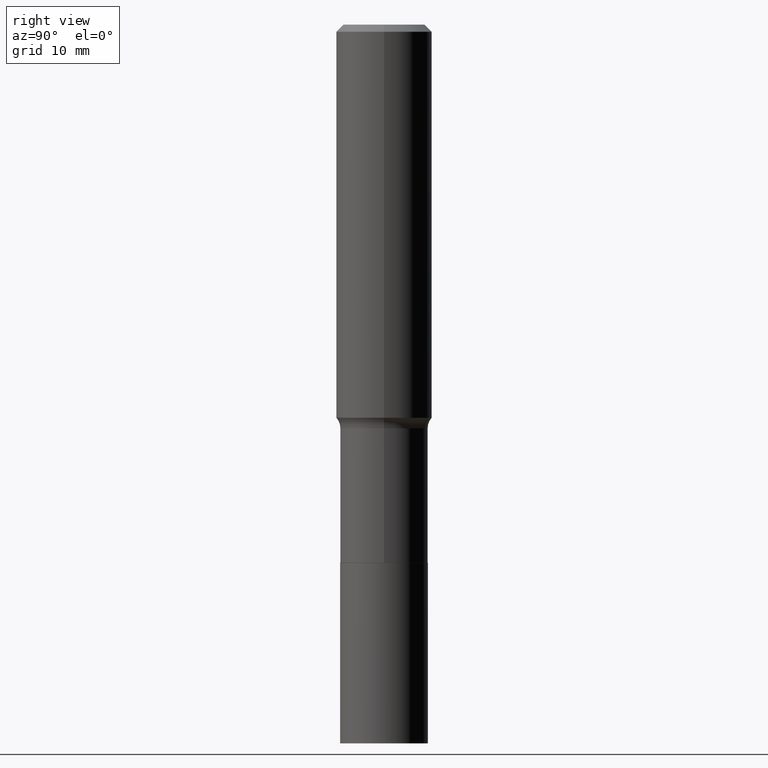
[diagram: clean part render]
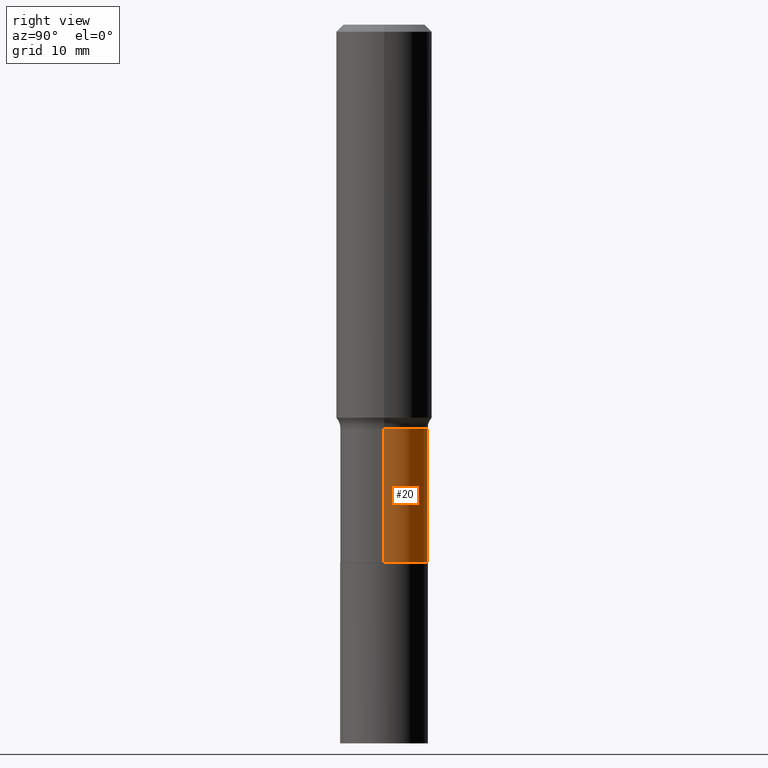
[diagram: same view with one face highlighted and labeled with its STEP entity id]
A machine part, right view. The second image highlights one B-rep face of the part: STEP entity #20.
In plain terms, the highlighted cylindrical surface (partial cylindrical patch) has radius 5.5004 mm, axis along (-0, 0, 1).
Its self-contained STEP definition (entity closure, byte-faithful):
#9 = AXIS2_PLACEMENT_3D ( 'NONE', #335, #263, #64 ) ;
#20 = ADVANCED_FACE ( 'NONE', ( #247 ), #93, .T. ) ;
#27 = CARTESIAN_POINT ( 'NONE',  ( -0.2165500000000000203, 1.538680294288497096E-15, -1.065195393794699923E-29 ) ) ;
#35 = DIRECTION ( 'NONE',  ( 1.000000000000000000, -6.982962677686265922E-15, 0.000000000000000000 ) ) ;
#52 = VERTEX_POINT ( 'NONE', #147 ) ;
#53 = VECTOR ( 'NONE', #339, 39.37007874015748143 ) ;
#59 = CARTESIAN_POINT ( 'NONE',  ( 0.2165500000000000480, -1.077436226353605461E-14, -2.652799999999999603 ) ) ;
#60 = CIRCLE ( 'NONE', #135, 0.2165499999999999647 ) ;
#64 = DIRECTION ( 'NONE',  ( 1.000000000000000000, -6.982962677686263555E-15, 0.000000000000000000 ) ) ;
#72 = AXIS2_PLACEMENT_3D ( 'NONE', #252, #354, #415 ) ;
#73 = CIRCLE ( 'NONE', #9, 0.2165500000000000480 ) ;
#93 = CYLINDRICAL_SURFACE ( 'NONE', #72, 0.2165500000000000203 ) ;
#101 = DIRECTION ( 'NONE',  ( -2.445468806185136877E-29, 3.491481338843145188E-15, 1.000000000000000000 ) ) ;
#107 = LINE ( 'NONE', #27, #287 ) ;
#135 = AXIS2_PLACEMENT_3D ( 'NONE', #157, #309, #35 ) ;
#147 = CARTESIAN_POINT ( 'NONE',  ( 0.2165499999999999647, -8.461255876552473241E-15, -1.990299999999999736 ) ) ;
#157 = CARTESIAN_POINT ( 'NONE',  ( 4.867216564950276881E-29, -6.949095308699512418E-15, -1.990299999999999736 ) ) ;
#165 = EDGE_LOOP ( 'NONE', ( #275, #443, #435, #417 ) ) ;
#191 = EDGE_CURVE ( 'NONE', #209, #196, #107, .T. ) ;
#196 = VERTEX_POINT ( 'NONE', #368 ) ;
#198 = VERTEX_POINT ( 'NONE', #59 ) ;
#209 = VERTEX_POINT ( 'NONE', #216 ) ;
#216 = CARTESIAN_POINT ( 'NONE',  ( -0.2165500000000000480, -6.566968207902806007E-15, -2.652799999999999603 ) ) ;
#220 = EDGE_CURVE ( 'NONE', #198, #52, #293, .T. ) ;
#247 = FACE_OUTER_BOUND ( 'NONE', #165, .T. ) ;
#252 = CARTESIAN_POINT ( 'NONE',  ( 0.000000000000000000, 0.000000000000000000, 0.000000000000000000 ) ) ;
#263 = DIRECTION ( 'NONE',  ( -2.445468806185136597E-29, 3.491481338843145583E-15, 1.000000000000000000 ) ) ;
#275 = ORIENTED_EDGE ( 'NONE', *, *, #367, .T. ) ;
#287 = VECTOR ( 'NONE', #101, 39.37007874015748143 ) ;
#293 = LINE ( 'NONE', #462, #53 ) ;
#309 = DIRECTION ( 'NONE',  ( -2.445468806185136597E-29, 3.491481338843145583E-15, 1.000000000000000000 ) ) ;
#335 = CARTESIAN_POINT ( 'NONE',  ( 6.487339649047929428E-29, -9.262201695683093788E-15, -2.652799999999999603 ) ) ;
#339 = DIRECTION ( 'NONE',  ( -2.445468806185136877E-29, 3.491481338843145188E-15, 1.000000000000000000 ) ) ;
#354 = DIRECTION ( 'NONE',  ( -2.445468806185136597E-29, 3.491481338843145583E-15, 1.000000000000000000 ) ) ;
#367 = EDGE_CURVE ( 'NONE', #198, #209, #73, .T. ) ;
#368 = CARTESIAN_POINT ( 'NONE',  ( -0.2165499999999999647, -6.566968207902806007E-15, -1.990299999999999736 ) ) ;
#415 = DIRECTION ( 'NONE',  ( 1.000000000000000000, -6.982962677686266711E-15, 4.876176775795935793E-29 ) ) ;
#416 = EDGE_CURVE ( 'NONE', #52, #196, #60, .T. ) ;
#417 = ORIENTED_EDGE ( 'NONE', *, *, #220, .F. ) ;
#435 = ORIENTED_EDGE ( 'NONE', *, *, #416, .F. ) ;
#443 = ORIENTED_EDGE ( 'NONE', *, *, #191, .T. ) ;
#462 = CARTESIAN_POINT ( 'NONE',  ( 0.2165500000000000203, -1.512160567852961217E-15, 1.055936080798610036E-29 ) ) ;